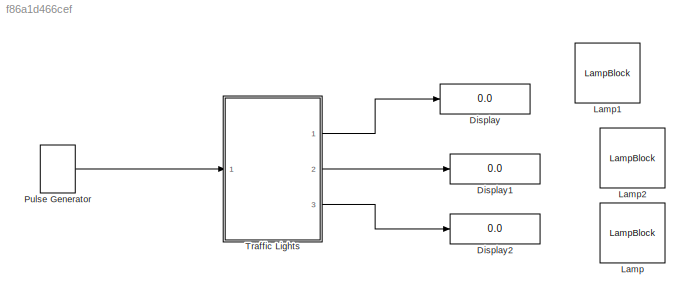
MODEL slx_f86a1d466cef
KIND model
CONFIG AbsTol = auto
CONFIG EnableMultiTasking = off
CONFIG FixedStep = auto
CONFIG MaxStep = auto
CONFIG MinStep = auto
CONFIG RelTol = 1e-3
CONFIG SampleTimeConstraint = Unconstrained
CONFIG SolverName = VariableStepAuto
CONFIG StartTime = 0.0
CONFIG StopTime = 30
BLOCK [Display] Display
  Decimation = 1
  Ports = [1]
BLOCK [Display] Display1
  Decimation = 1
  Ports = [1]
BLOCK [Display] Display2
  Decimation = 1
  Ports = [1]
BLOCK [LampBlock] Lamp
BLOCK [LampBlock] Lamp1
BLOCK [LampBlock] Lamp2
BLOCK [DiscretePulseGenerator] Pulse Generator
  Period = 0.5
  Ports = [0, 1]
  PulseType = Time based
  PulseWidth = 10
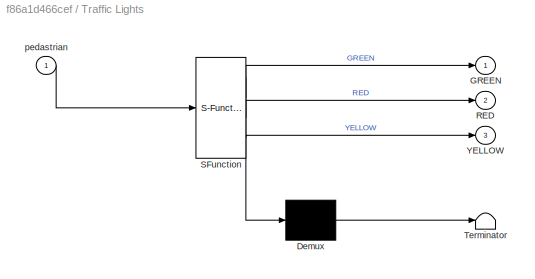
BLOCK [SubSystem] Traffic Lights
  ErrorFcn = Stateflow.Translate.translate
  PermitHierarchicalResolution = ExplicitOnly
  Ports = [1, 3]
  RequestExecContextInheritance = off
  SFBlockType = Chart
  TreatAsAtomicUnit = on
BLOCK [Demux] Traffic Lights/ Demux 
  Outputs = 1
  Ports = [1, 1]
BLOCK [S-Function] Traffic Lights/ SFunction 
  EnableBusSupport = on
  FunctionName = sf_sfun
  PortCounts = [1 4]
  Ports = [1, 4]
  SFcnIsStateOwnerBlock = off
  SFunctionDeploymentMode = off
  Tag = Stateflow S-Function 3
BLOCK [Terminator] Traffic Lights/ Terminator 
BLOCK [Outport] Traffic Lights/GREEN
BLOCK [Outport] Traffic Lights/RED
  Port = 2
BLOCK [Outport] Traffic Lights/YELLOW
  Port = 3
BLOCK [Inport] Traffic Lights/pedastrian
LINE Pulse Generator:1 -> Traffic Lights:1
LINE Traffic Lights:1 -> Display:1
LINE Traffic Lights:2 -> Display1:1
LINE Traffic Lights:3 -> Display2:1
CHART Traffic Lights states=5 transitions=7
  STATE_LABEL 'Halt\nRED=1;\nGREEN=0;\nYELLOW=0;'
  STATE_LABEL 'GoToHalt\nYELLOW=1;\nRED=0;\nGREEN=0;'
  STATE_LABEL 'TrafficStop\nRED=1;\nGREEN=0;\nYELLOW=0;'
  STATE_LABEL 'Go\nGREEN=1;\nRED=0;\nYELLOW=0;'
  STATE_LABEL 'Ready\nRED=0;\nYELLOW=1;\nGREEN=0;'
CHART  states=0 transitions=0
